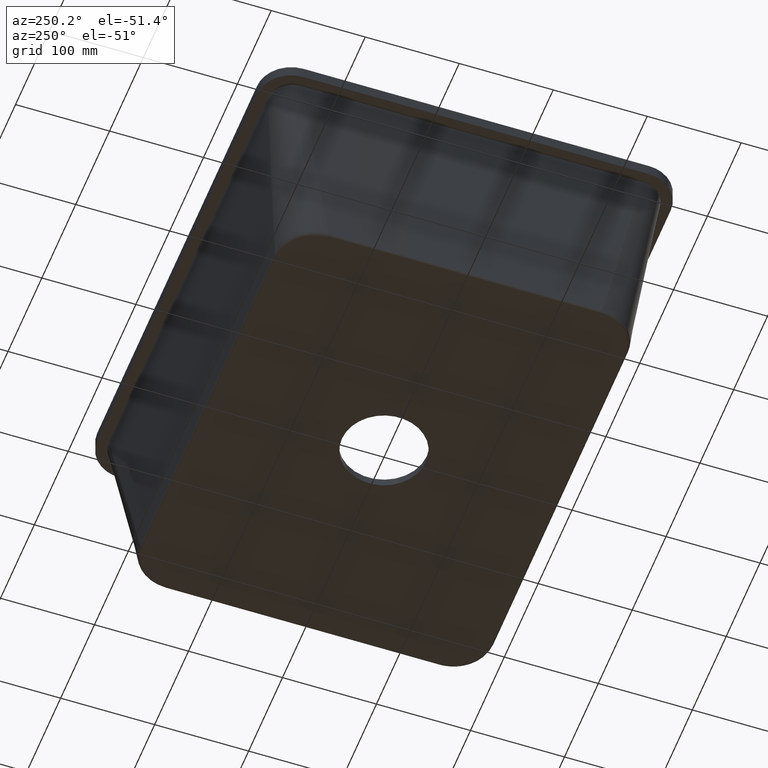
[diagram: clean part render]
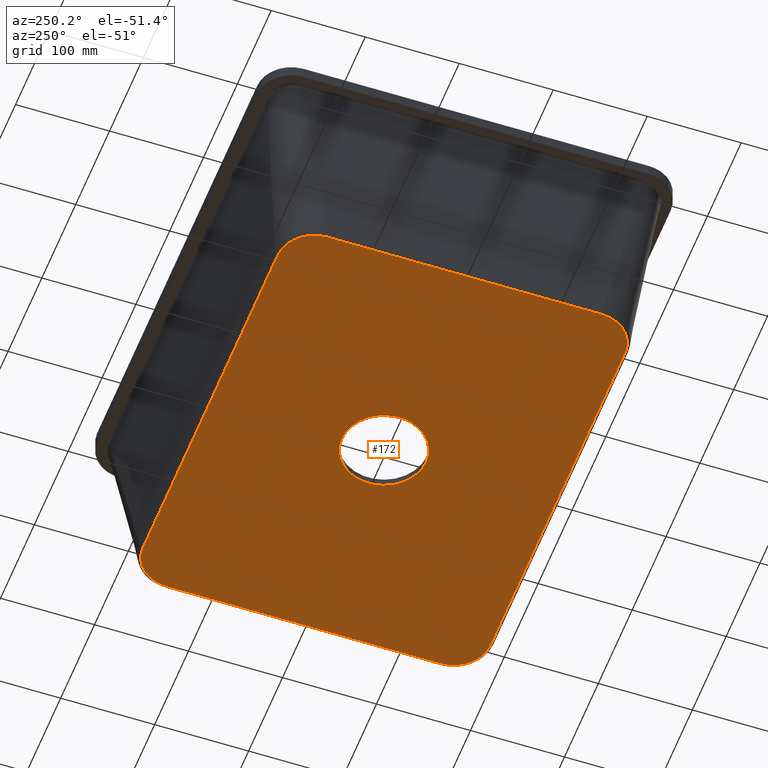
[diagram: same view with one face highlighted and labeled with its STEP entity id]
A machine part, auxiliary view. The second image highlights one B-rep face of the part: STEP entity #172.
In plain terms, the highlighted face is a freeform B-spline surface patch.
Its self-contained STEP definition (entity closure, byte-faithful):
#120=B_SPLINE_SURFACE_WITH_KNOTS('',1,1,((#1509,#1510),(#1511,#1512)),
 .UNSPECIFIED.,.F.,.F.,.F.,(2,2),(2,2),(0.,1.),(0.,1.),.UNSPECIFIED.);
#157=(
BOUNDED_CURVE()
B_SPLINE_CURVE(3,(#1407,#1408,#1409,#1410,#1411,#1412,#1413,#1414,#1415,
#1416,#1417,#1418,#1419,#1420,#1421,#1422),.UNSPECIFIED.,.F.,.F.)
B_SPLINE_CURVE_WITH_KNOTS((4,2,2,2,2,2,2,4),(0.,0.25,0.375,0.5,0.625,0.75,
0.875,1.),.UNSPECIFIED.)
CURVE()
GEOMETRIC_REPRESENTATION_ITEM()
RATIONAL_B_SPLINE_CURVE((1.,1.,1.,1.,1.,1.,1.,1.,1.,1.,1.,1.,1.,1.,1.,1.))
REPRESENTATION_ITEM('')
);
#158=(
BOUNDED_CURVE()
B_SPLINE_CURVE(3,(#1434,#1435,#1436,#1437,#1438,#1439,#1440,#1441,#1442,
#1443,#1444,#1445,#1446,#1447,#1448,#1449),.UNSPECIFIED.,.F.,.F.)
B_SPLINE_CURVE_WITH_KNOTS((4,2,2,2,2,2,2,4),(0.,0.125,0.25,0.375,0.5,0.625,
0.75,1.),.UNSPECIFIED.)
CURVE()
GEOMETRIC_REPRESENTATION_ITEM()
RATIONAL_B_SPLINE_CURVE((1.,1.,1.,1.,1.,1.,1.,1.,1.,1.,1.,1.,1.,1.,1.,1.))
REPRESENTATION_ITEM('')
);
#159=(
BOUNDED_CURVE()
B_SPLINE_CURVE(3,(#1461,#1462,#1463,#1464,#1465,#1466,#1467,#1468,#1469,
#1470,#1471,#1472,#1473,#1474,#1475,#1476),.UNSPECIFIED.,.F.,.F.)
B_SPLINE_CURVE_WITH_KNOTS((4,2,2,2,2,2,2,4),(0.,0.25,0.375,0.5,0.625,0.75,
0.875,1.),.UNSPECIFIED.)
CURVE()
GEOMETRIC_REPRESENTATION_ITEM()
RATIONAL_B_SPLINE_CURVE((1.,1.,1.,1.,1.,1.,1.,1.,1.,1.,1.,1.,1.,1.,1.,1.))
REPRESENTATION_ITEM('')
);
#160=(
BOUNDED_CURVE()
B_SPLINE_CURVE(3,(#1488,#1489,#1490,#1491,#1492,#1493,#1494,#1495,#1496,
#1497,#1498,#1499,#1500,#1501,#1502,#1503),.UNSPECIFIED.,.F.,.F.)
B_SPLINE_CURVE_WITH_KNOTS((4,2,2,2,2,2,2,4),(0.,0.125,0.25,0.375,0.5,0.625,
0.75,1.),.UNSPECIFIED.)
CURVE()
GEOMETRIC_REPRESENTATION_ITEM()
RATIONAL_B_SPLINE_CURVE((1.,1.,1.,1.,1.,1.,1.,1.,1.,1.,1.,1.,1.,1.,1.,1.))
REPRESENTATION_ITEM('')
);
#162=FACE_BOUND('',#311,.T.);
#163=FACE_BOUND('',#312,.T.);
#172=ADVANCED_FACE('',(#162,#163),#120,.F.);
#311=EDGE_LOOP('',(#405,#406));
#312=EDGE_LOOP('',(#407,#408,#409,#410,#411,#412,#413,#414,#415,#416,#417,
#418));
#405=ORIENTED_EDGE('',*,*,#883,.T.);
#406=ORIENTED_EDGE('',*,*,#888,.T.);
#407=ORIENTED_EDGE('',*,*,#889,.F.);
#408=ORIENTED_EDGE('',*,*,#890,.F.);
#409=ORIENTED_EDGE('',*,*,#891,.F.);
#410=ORIENTED_EDGE('',*,*,#892,.F.);
#411=ORIENTED_EDGE('',*,*,#893,.F.);
#412=ORIENTED_EDGE('',*,*,#894,.F.);
#413=ORIENTED_EDGE('',*,*,#895,.F.);
#414=ORIENTED_EDGE('',*,*,#896,.F.);
#415=ORIENTED_EDGE('',*,*,#897,.F.);
#416=ORIENTED_EDGE('',*,*,#898,.F.);
#417=ORIENTED_EDGE('',*,*,#899,.F.);
#418=ORIENTED_EDGE('',*,*,#900,.F.);
#765=VERTEX_POINT('',#1371);
#766=VERTEX_POINT('',#1372);
#769=VERTEX_POINT('',#1405);
#770=VERTEX_POINT('',#1406);
#771=VERTEX_POINT('',#1423);
#772=VERTEX_POINT('',#1428);
#773=VERTEX_POINT('',#1433);
#774=VERTEX_POINT('',#1450);
#775=VERTEX_POINT('',#1455);
#776=VERTEX_POINT('',#1460);
#777=VERTEX_POINT('',#1477);
#778=VERTEX_POINT('',#1482);
#779=VERTEX_POINT('',#1487);
#780=VERTEX_POINT('',#1504);
#883=EDGE_CURVE('',#765,#766,#1067,.T.);
#888=EDGE_CURVE('',#766,#765,#1070,.T.);
#889=EDGE_CURVE('',#769,#770,#1071,.T.);
#890=EDGE_CURVE('',#771,#769,#157,.T.);
#891=EDGE_CURVE('',#772,#771,#1072,.T.);
#892=EDGE_CURVE('',#773,#772,#1073,.T.);
#893=EDGE_CURVE('',#774,#773,#158,.T.);
#894=EDGE_CURVE('',#775,#774,#1074,.T.);
#895=EDGE_CURVE('',#776,#775,#1075,.T.);
#896=EDGE_CURVE('',#777,#776,#159,.T.);
#897=EDGE_CURVE('',#778,#777,#1076,.T.);
#898=EDGE_CURVE('',#779,#778,#1077,.T.);
#899=EDGE_CURVE('',#780,#779,#160,.T.);
#900=EDGE_CURVE('',#770,#780,#1078,.T.);
#1067=B_SPLINE_CURVE_WITH_KNOTS('',3,(#1353,#1354,#1355,#1356,#1357,#1358,
#1359,#1360,#1361,#1362,#1363,#1364,#1365,#1366,#1367,#1368,#1369,#1370),
 .UNSPECIFIED.,.F.,.F.,(4,2,2,2,2,2,2,2,4),(0.,0.125,0.25,0.375,0.5,0.625,
0.75,0.875,1.),.UNSPECIFIED.);
#1070=B_SPLINE_CURVE_WITH_KNOTS('',3,(#1382,#1383,#1384,#1385,#1386,#1387,
#1388,#1389,#1390,#1391,#1392,#1393,#1394,#1395,#1396,#1397,#1398,#1399),
 .UNSPECIFIED.,.F.,.F.,(4,2,2,2,2,2,2,2,4),(0.,0.125,0.25,0.375,0.5,0.625,
0.75,0.875,1.),.UNSPECIFIED.);
#1071=B_SPLINE_CURVE_WITH_KNOTS('',3,(#1401,#1402,#1403,#1404),
 .UNSPECIFIED.,.F.,.F.,(4,4),(0.,1.),.UNSPECIFIED.);
#1072=B_SPLINE_CURVE_WITH_KNOTS('',3,(#1424,#1425,#1426,#1427),
 .UNSPECIFIED.,.F.,.F.,(4,4),(0.,1.),.UNSPECIFIED.);
#1073=B_SPLINE_CURVE_WITH_KNOTS('',3,(#1429,#1430,#1431,#1432),
 .UNSPECIFIED.,.F.,.F.,(4,4),(0.,1.),.UNSPECIFIED.);
#1074=B_SPLINE_CURVE_WITH_KNOTS('',3,(#1451,#1452,#1453,#1454),
 .UNSPECIFIED.,.F.,.F.,(4,4),(0.,1.),.UNSPECIFIED.);
#1075=B_SPLINE_CURVE_WITH_KNOTS('',3,(#1456,#1457,#1458,#1459),
 .UNSPECIFIED.,.F.,.F.,(4,4),(0.,1.),.UNSPECIFIED.);
#1076=B_SPLINE_CURVE_WITH_KNOTS('',3,(#1478,#1479,#1480,#1481),
 .UNSPECIFIED.,.F.,.F.,(4,4),(0.,1.),.UNSPECIFIED.);
#1077=B_SPLINE_CURVE_WITH_KNOTS('',3,(#1483,#1484,#1485,#1486),
 .UNSPECIFIED.,.F.,.F.,(4,4),(0.,1.),.UNSPECIFIED.);
#1078=B_SPLINE_CURVE_WITH_KNOTS('',3,(#1505,#1506,#1507,#1508),
 .UNSPECIFIED.,.F.,.F.,(4,4),(0.,1.),.UNSPECIFIED.);
#1353=CARTESIAN_POINT('',(-1.56543446082893E-14,-44.7354157086448,-212.999999999934));
#1354=CARTESIAN_POINT('',(5.87507504538506,-44.7354157086448,-212.999999999934));
#1355=CARTESIAN_POINT('',(11.6925928217986,-43.5781055769196,-212.999999999934));
#1356=CARTESIAN_POINT('',(22.5464120415282,-39.0821643262822,-212.999999999934));
#1357=CARTESIAN_POINT('',(27.4791662069128,-35.7863582545704,-212.999999999934));
#1358=CARTESIAN_POINT('',(35.7862654066512,-27.4790733589936,-212.999999999934));
#1359=CARTESIAN_POINT('',(39.0822856374443,-22.5464622927028,-212.999999999934));
#1360=CARTESIAN_POINT('',(43.5779842657577,-11.6925425706239,-212.999999999934));
#1361=CARTESIAN_POINT('',(44.7354813618992,-5.87407182987342,-212.999999999934));
#1362=CARTESIAN_POINT('',(44.7353500553907,5.87407182987357,-212.999999999934));
#1363=CARTESIAN_POINT('',(43.5781055772131,11.6925928208449,-212.999999999934));
#1364=CARTESIAN_POINT('',(39.0821643259888,22.546412042482,-212.999999999934));
#1365=CARTESIAN_POINT('',(35.786358256596,27.4791662046622,-212.999999999934));
#1366=CARTESIAN_POINT('',(27.479073356968,35.7862654089019,-212.999999999934));
#1367=CARTESIAN_POINT('',(22.5464622929202,39.0822856372298,-212.999999999934));
#1368=CARTESIAN_POINT('',(11.6925425704066,43.5779842659722,-212.999999999934));
#1369=CARTESIAN_POINT('',(5.87440191187048,44.735415708645,-212.999999999934));
#1370=CARTESIAN_POINT('',(0.,44.735415708645,-212.999999999934));
#1371=CARTESIAN_POINT('',(-6.3554323245927E-14,-44.7354198358257,-212.999952826041));
#1372=CARTESIAN_POINT('',(-5.54645300874058E-14,44.7354198358258,-212.999952826041));
#1382=CARTESIAN_POINT('',(-5.23802823096001E-13,44.735415708645,-212.999999999934));
#1383=CARTESIAN_POINT('',(-5.87507504538545,44.735415708645,-212.999999999934));
#1384=CARTESIAN_POINT('',(-11.6925928206659,43.5781055771452,-212.999999999934));
#1385=CARTESIAN_POINT('',(-22.546412042662,39.0821643260568,-212.999999999934));
#1386=CARTESIAN_POINT('',(-27.4791662072792,35.7863582544485,-212.999999999934));
#1387=CARTESIAN_POINT('',(-35.7862654062859,27.4790733591157,-212.999999999934));
#1388=CARTESIAN_POINT('',(-39.0822856374446,22.5464622927032,-212.999999999934));
#1389=CARTESIAN_POINT('',(-43.5779842657583,11.6925425706236,-212.999999999934));
#1390=CARTESIAN_POINT('',(-44.7354813620831,5.87407182870765,-212.999999999934));
#1391=CARTESIAN_POINT('',(-44.7353500552078,-5.87407182870743,-212.999999999934));
#1392=CARTESIAN_POINT('',(-43.5781055776428,-11.6925928193659,-212.999999999934));
#1393=CARTESIAN_POINT('',(-39.0821643255602,-22.5464120439608,-212.999999999934));
#1394=CARTESIAN_POINT('',(-35.7863582546917,-27.4791662069943,-212.999999999934));
#1395=CARTESIAN_POINT('',(-27.4790733588734,-35.7862654065696,-212.999999999934));
#1396=CARTESIAN_POINT('',(-22.5464622913616,-39.0822856380275,-212.999999999934));
#1397=CARTESIAN_POINT('',(-11.6925425719664,-43.5779842651743,-212.999999999934));
#1398=CARTESIAN_POINT('',(-5.87440191064468,-44.7354157086449,-212.999999999934));
#1399=CARTESIAN_POINT('',(-5.55111512312578E-13,-44.7354157086448,-212.999999999934));
#1401=CARTESIAN_POINT('',(-198.805185604876,-184.785871795354,-212.999999999934));
#1402=CARTESIAN_POINT('',(-132.536790403251,-184.785871795354,-212.999999999934));
#1403=CARTESIAN_POINT('',(-66.2683952016253,-184.785871795354,-212.999999999934));
#1404=CARTESIAN_POINT('',(5.55111512312578E-14,-184.785871795354,-212.999999999934));
#1405=CARTESIAN_POINT('',(-198.805185604876,-184.785871795354,-212.999999999934));
#1406=CARTESIAN_POINT('',(0.000754325076873785,-184.785871795354,-212.999999999934));
#1407=CARTESIAN_POINT('',(-237.873638284546,-145.678859501033,-212.999999999934));
#1408=CARTESIAN_POINT('',(-237.873638284689,-150.82222054371,-212.999999999934));
#1409=CARTESIAN_POINT('',(-236.854450106116,-155.978208137484,-212.999999999934));
#1410=CARTESIAN_POINT('',(-233.937723808414,-163.035738064138,-212.999999999934));
#1411=CARTESIAN_POINT('',(-232.725251547604,-165.311124399883,-212.999999999934));
#1412=CARTESIAN_POINT('',(-229.869384491732,-169.585583102005,-212.999999999934));
#1413=CARTESIAN_POINT('',(-228.251642620895,-171.553933735067,-212.999999999934));
#1414=CARTESIAN_POINT('',(-224.646528285539,-175.161762520158,-212.999999999934));
#1415=CARTESIAN_POINT('',(-222.635282417874,-176.813517234454,-212.999999999935));
#1416=CARTESIAN_POINT('',(-218.387196915651,-179.649509085898,-212.999999999934));
#1417=CARTESIAN_POINT('',(-216.142155903128,-180.849247781116,-212.999999999934));
#1418=CARTESIAN_POINT('',(-211.40708241728,-182.8068084288,-212.999999999934));
#1419=CARTESIAN_POINT('',(-208.923651096491,-183.554655017744,-212.999999999935));
#1420=CARTESIAN_POINT('',(-203.926588101796,-184.538175362437,-212.999999999934));
#1421=CARTESIAN_POINT('',(-201.386633323958,-184.785871795067,-212.999999999934));
#1422=CARTESIAN_POINT('',(-198.805185604876,-184.785871795354,-212.999999999934));
#1423=CARTESIAN_POINT('',(-237.873638284546,-145.678859501033,-212.999999999934));
#1424=CARTESIAN_POINT('',(-237.873638284545,6.19328943063164E-15,-212.999999999934));
#1425=CARTESIAN_POINT('',(-237.873638284546,-48.5596198336777,-212.999999999935));
#1426=CARTESIAN_POINT('',(-237.873638284546,-97.1192396673553,-212.999999999935));
#1427=CARTESIAN_POINT('',(-237.873638284547,-145.678859501033,-212.999999999936));
#1428=CARTESIAN_POINT('',(-237.873638284545,-0.000418361469064171,-212.999999999934));
#1429=CARTESIAN_POINT('',(-237.873638284547,145.678859501033,-212.999999999935));
#1430=CARTESIAN_POINT('',(-237.873638284546,97.1192396673553,-212.999999999934));
#1431=CARTESIAN_POINT('',(-237.873638284546,48.5596198336777,-212.999999999934));
#1432=CARTESIAN_POINT('',(-237.873638284545,-6.19328943062187E-15,-212.999999999933));
#1433=CARTESIAN_POINT('',(-237.873638284546,145.678859501033,-212.999999999934));
#1434=CARTESIAN_POINT('',(-198.805185604876,184.785871795354,-212.999999999934));
#1435=CARTESIAN_POINT('',(-201.386633323958,184.785871795067,-212.999999999934));
#1436=CARTESIAN_POINT('',(-203.926588101796,184.538175362401,-212.999999999935));
#1437=CARTESIAN_POINT('',(-208.923651096491,183.554655017779,-212.999999999934));
#1438=CARTESIAN_POINT('',(-211.407082417351,182.806808428764,-212.999999999934));
#1439=CARTESIAN_POINT('',(-216.142155903056,180.849247781151,-212.999999999934));
#1440=CARTESIAN_POINT('',(-218.387196915545,179.649509085685,-212.999999999934));
#1441=CARTESIAN_POINT('',(-222.635282417981,176.813517234666,-212.999999999935));
#1442=CARTESIAN_POINT('',(-224.646528285503,175.161762519875,-212.999999999934));
#1443=CARTESIAN_POINT('',(-228.251642620931,171.55393373535,-212.999999999934));
#1444=CARTESIAN_POINT('',(-229.869384491732,169.585583102005,-212.999999999934));
#1445=CARTESIAN_POINT('',(-232.725251547604,165.311124399883,-212.999999999934));
#1446=CARTESIAN_POINT('',(-233.937723808414,163.035738064138,-212.999999999934));
#1447=CARTESIAN_POINT('',(-236.854450106116,155.978208137484,-212.999999999934));
#1448=CARTESIAN_POINT('',(-237.873638284689,150.82222054371,-212.999999999934));
#1449=CARTESIAN_POINT('',(-237.873638284546,145.678859501033,-212.999999999934));
#1450=CARTESIAN_POINT('',(-198.805185604876,184.785871795354,-212.999999999934));
#1451=CARTESIAN_POINT('',(5.55111512312578E-14,184.785871795354,-212.999999999934));
#1452=CARTESIAN_POINT('',(-66.2683952016253,184.785871795354,-212.999999999934));
#1453=CARTESIAN_POINT('',(-132.536790403251,184.785871795354,-212.999999999934));
#1454=CARTESIAN_POINT('',(-198.805185604876,184.785871795354,-212.999999999934));
#1455=CARTESIAN_POINT('',(0.000754325076870316,184.785871795354,-212.999999999934));
#1456=CARTESIAN_POINT('',(198.805185604876,184.785871795354,-212.999999999934));
#1457=CARTESIAN_POINT('',(132.536790403251,184.785871795354,-212.999999999934));
#1458=CARTESIAN_POINT('',(66.2683952016253,184.785871795354,-212.999999999934));
#1459=CARTESIAN_POINT('',(-5.55111512312578E-14,184.785871795354,-212.999999999934));
#1460=CARTESIAN_POINT('',(198.805185604876,184.785871795354,-212.999999999934));
#1461=CARTESIAN_POINT('',(237.873638284546,145.678859501033,-212.999999999934));
#1462=CARTESIAN_POINT('',(237.873638284689,150.82222054371,-212.999999999934));
#1463=CARTESIAN_POINT('',(236.854450106116,155.978208137484,-212.999999999934));
#1464=CARTESIAN_POINT('',(233.937723808414,163.035738064138,-212.999999999934));
#1465=CARTESIAN_POINT('',(232.725251547604,165.311124399883,-212.999999999934));
#1466=CARTESIAN_POINT('',(229.869384491732,169.585583102005,-212.999999999934));
#1467=CARTESIAN_POINT('',(228.251642620895,171.553933735067,-212.999999999934));
#1468=CARTESIAN_POINT('',(224.646528285539,175.161762520158,-212.999999999934));
#1469=CARTESIAN_POINT('',(222.635282417874,176.813517234454,-212.999999999935));
#1470=CARTESIAN_POINT('',(218.387196915651,179.649509085898,-212.999999999934));
#1471=CARTESIAN_POINT('',(216.142155903128,180.849247781116,-212.999999999934));
#1472=CARTESIAN_POINT('',(211.40708241728,182.8068084288,-212.999999999934));
#1473=CARTESIAN_POINT('',(208.923651096491,183.554655017744,-212.999999999935));
#1474=CARTESIAN_POINT('',(203.926588101796,184.538175362437,-212.999999999934));
#1475=CARTESIAN_POINT('',(201.386633323958,184.785871795067,-212.999999999934));
#1476=CARTESIAN_POINT('',(198.805185604876,184.785871795354,-212.999999999934));
#1477=CARTESIAN_POINT('',(237.873638284546,145.678859501033,-212.999999999934));
#1478=CARTESIAN_POINT('',(237.873638284545,-6.19328943063164E-15,-212.999999999934));
#1479=CARTESIAN_POINT('',(237.873638284546,48.5596198336777,-212.999999999935));
#1480=CARTESIAN_POINT('',(237.873638284546,97.1192396673553,-212.999999999935));
#1481=CARTESIAN_POINT('',(237.873638284547,145.678859501033,-212.999999999936));
#1482=CARTESIAN_POINT('',(237.873638284545,-0.000418361469049635,-212.999999999934));
#1483=CARTESIAN_POINT('',(237.873638284547,-145.678859501033,-212.999999999935));
#1484=CARTESIAN_POINT('',(237.873638284546,-97.1192396673553,-212.999999999934));
#1485=CARTESIAN_POINT('',(237.873638284546,-48.5596198336777,-212.999999999934));
#1486=CARTESIAN_POINT('',(237.873638284545,6.19328943062188E-15,-212.999999999933));
#1487=CARTESIAN_POINT('',(237.873638284546,-145.678859501033,-212.999999999934));
#1488=CARTESIAN_POINT('',(198.805185604876,-184.785871795354,-212.999999999934));
#1489=CARTESIAN_POINT('',(201.386633323958,-184.785871795067,-212.999999999934));
#1490=CARTESIAN_POINT('',(203.926588101796,-184.538175362401,-212.999999999935));
#1491=CARTESIAN_POINT('',(208.923651096491,-183.554655017779,-212.999999999934));
#1492=CARTESIAN_POINT('',(211.407082417351,-182.806808428764,-212.999999999934));
#1493=CARTESIAN_POINT('',(216.142155903056,-180.849247781151,-212.999999999934));
#1494=CARTESIAN_POINT('',(218.387196915545,-179.649509085685,-212.999999999934));
#1495=CARTESIAN_POINT('',(222.635282417981,-176.813517234666,-212.999999999935));
#1496=CARTESIAN_POINT('',(224.646528285503,-175.161762519875,-212.999999999934));
#1497=CARTESIAN_POINT('',(228.251642620931,-171.55393373535,-212.999999999934));
#1498=CARTESIAN_POINT('',(229.869384491732,-169.585583102005,-212.999999999934));
#1499=CARTESIAN_POINT('',(232.725251547604,-165.311124399883,-212.999999999934));
#1500=CARTESIAN_POINT('',(233.937723808414,-163.035738064138,-212.999999999934));
#1501=CARTESIAN_POINT('',(236.854450106116,-155.978208137484,-212.999999999934));
#1502=CARTESIAN_POINT('',(237.873638284689,-150.82222054371,-212.999999999934));
#1503=CARTESIAN_POINT('',(237.873638284546,-145.678859501033,-212.999999999934));
#1504=CARTESIAN_POINT('',(198.805185604876,-184.785871795354,-212.999999999934));
#1505=CARTESIAN_POINT('',(-5.55111512312578E-14,-184.785871795354,-212.999999999934));
#1506=CARTESIAN_POINT('',(66.2683952016253,-184.785871795354,-212.999999999934));
#1507=CARTESIAN_POINT('',(132.536790403251,-184.785871795354,-212.999999999934));
#1508=CARTESIAN_POINT('',(198.805185604876,-184.785871795354,-212.999999999934));
#1509=CARTESIAN_POINT('',(260.969870586607,-313.163844703928,-212.999999999934));
#1510=CARTESIAN_POINT('',(-301.565183788968,-313.163844703928,-212.999999999934));
#1511=CARTESIAN_POINT('',(260.969870586607,434.949784311011,-212.999999999934));
#1512=CARTESIAN_POINT('',(-301.565183788968,434.949784311011,-212.999999999934));